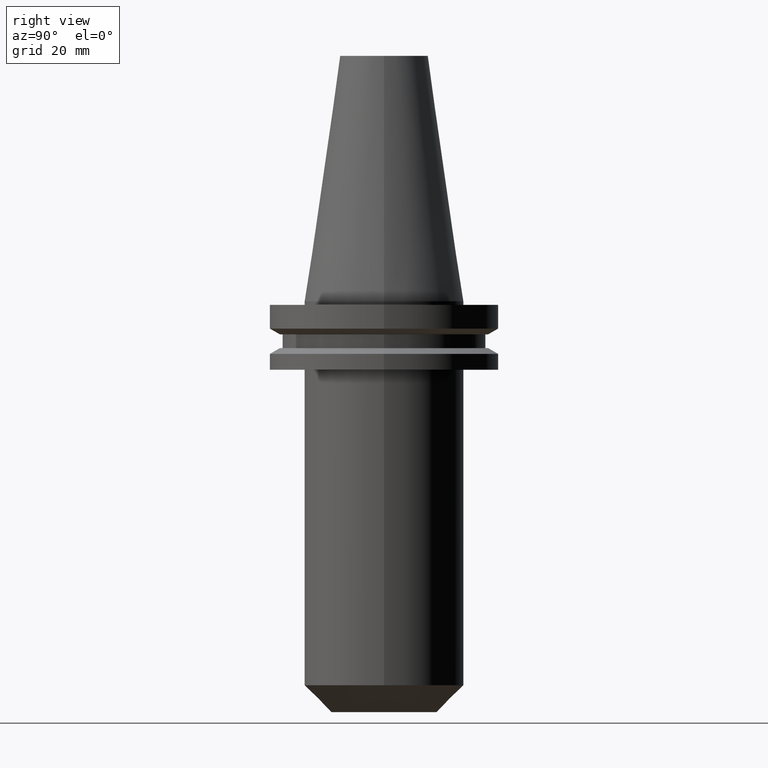
[diagram: clean part render]
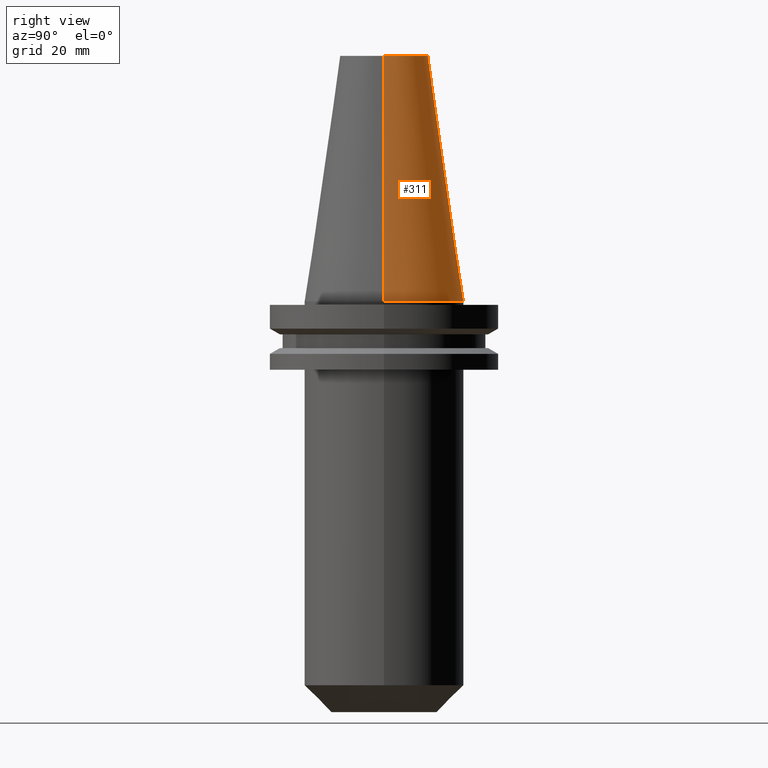
[diagram: same view with one face highlighted and labeled with its STEP entity id]
A machine part, right view. The second image highlights one B-rep face of the part: STEP entity #311.
In plain terms, the highlighted conical surface has half-angle 8.297 deg.
Its self-contained STEP definition (entity closure, byte-faithful):
#18 = CARTESIAN_POINT ( 'NONE',  ( 0.000000000000000000, 0.000000000000000000, 68.25000000000000000 ) ) ;
#23 = VECTOR ( 'NONE', #459, 999.9999999999998863 ) ;
#62 = CARTESIAN_POINT ( 'NONE',  ( -22.22500000000000142, 0.000000000000000000, 0.000000000000000000 ) ) ;
#63 = VERTEX_POINT ( 'NONE', #379 ) ;
#79 = DIRECTION ( 'NONE',  ( 1.000000000000000000, 0.000000000000000000, 0.000000000000000000 ) ) ;
#89 = CARTESIAN_POINT ( 'NONE',  ( 22.22500000000000142, 2.721777511104992849E-15, 0.000000000000000000 ) ) ;
#101 = CARTESIAN_POINT ( 'NONE',  ( 22.22500000000000142, 2.721777511104992849E-15, 0.000000000000000000 ) ) ;
#121 = CIRCLE ( 'NONE', #446, 22.22500000000000142 ) ;
#159 = EDGE_CURVE ( 'NONE', #63, #637, #344, .T. ) ;
#176 = ORIENTED_EDGE ( 'NONE', *, *, #159, .F. ) ;
#181 = VERTEX_POINT ( 'NONE', #101 ) ;
#206 = DIRECTION ( 'NONE',  ( -1.000000000000000000, 0.000000000000000000, 0.000000000000000000 ) ) ;
#311 = ADVANCED_FACE ( 'NONE', ( #401 ), #410, .T. ) ;
#331 = EDGE_CURVE ( 'NONE', #634, #63, #579, .T. ) ;
#344 = LINE ( 'NONE', #525, #676 ) ;
#379 = CARTESIAN_POINT ( 'NONE',  ( -12.27178102086201150, 0.000000000000000000, 68.25000000000000000 ) ) ;
#399 = AXIS2_PLACEMENT_3D ( 'NONE', #18, #689, #79 ) ;
#401 = FACE_OUTER_BOUND ( 'NONE', #657, .T. ) ;
#410 = CONICAL_SURFACE ( 'NONE', #765, 22.22500000000000142, 0.1448138465474119174 ) ;
#428 = DIRECTION ( 'NONE',  ( -0.000000000000000000, -0.000000000000000000, 1.000000000000000000 ) ) ;
#436 = DIRECTION ( 'NONE',  ( 1.000000000000000000, 0.000000000000000000, 0.000000000000000000 ) ) ;
#437 = EDGE_CURVE ( 'NONE', #634, #181, #643, .T. ) ;
#446 = AXIS2_PLACEMENT_3D ( 'NONE', #622, #428, #436 ) ;
#459 = DIRECTION ( 'NONE',  ( 0.1443082272672999711, 1.767266086135276757E-17, -0.9895327864921755756 ) ) ;
#517 = CARTESIAN_POINT ( 'NONE',  ( 0.000000000000000000, 0.000000000000000000, 0.000000000000000000 ) ) ;
#525 = CARTESIAN_POINT ( 'NONE',  ( -22.22500000000000142, 0.000000000000000000, 0.000000000000000000 ) ) ;
#579 = CIRCLE ( 'NONE', #399, 12.27178102086201150 ) ;
#622 = CARTESIAN_POINT ( 'NONE',  ( 0.000000000000000000, 0.000000000000000000, 0.000000000000000000 ) ) ;
#634 = VERTEX_POINT ( 'NONE', #668 ) ;
#637 = VERTEX_POINT ( 'NONE', #62 ) ;
#643 = LINE ( 'NONE', #89, #23 ) ;
#650 = ORIENTED_EDGE ( 'NONE', *, *, #437, .T. ) ;
#657 = EDGE_LOOP ( 'NONE', ( #756, #650, #741, #176 ) ) ;
#668 = CARTESIAN_POINT ( 'NONE',  ( 12.27178102086201150, 2.112318622904291439E-15, 68.25000000000000000 ) ) ;
#676 = VECTOR ( 'NONE', #699, 999.9999999999998863 ) ;
#689 = DIRECTION ( 'NONE',  ( -0.000000000000000000, -0.000000000000000000, 1.000000000000000000 ) ) ;
#699 = DIRECTION ( 'NONE',  ( -0.1443082272672999711, 0.000000000000000000, -0.9895327864921755756 ) ) ;
#728 = DIRECTION ( 'NONE',  ( 0.000000000000000000, 0.000000000000000000, -1.000000000000000000 ) ) ;
#741 = ORIENTED_EDGE ( 'NONE', *, *, #743, .T. ) ;
#743 = EDGE_CURVE ( 'NONE', #181, #637, #121, .T. ) ;
#756 = ORIENTED_EDGE ( 'NONE', *, *, #331, .F. ) ;
#765 = AXIS2_PLACEMENT_3D ( 'NONE', #517, #728, #206 ) ;